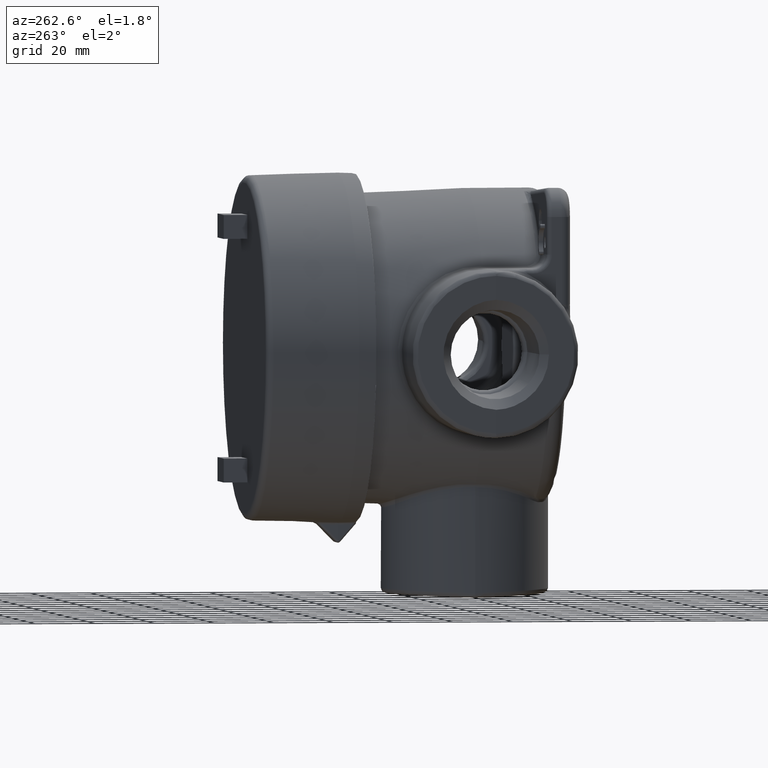
[diagram: clean part render]
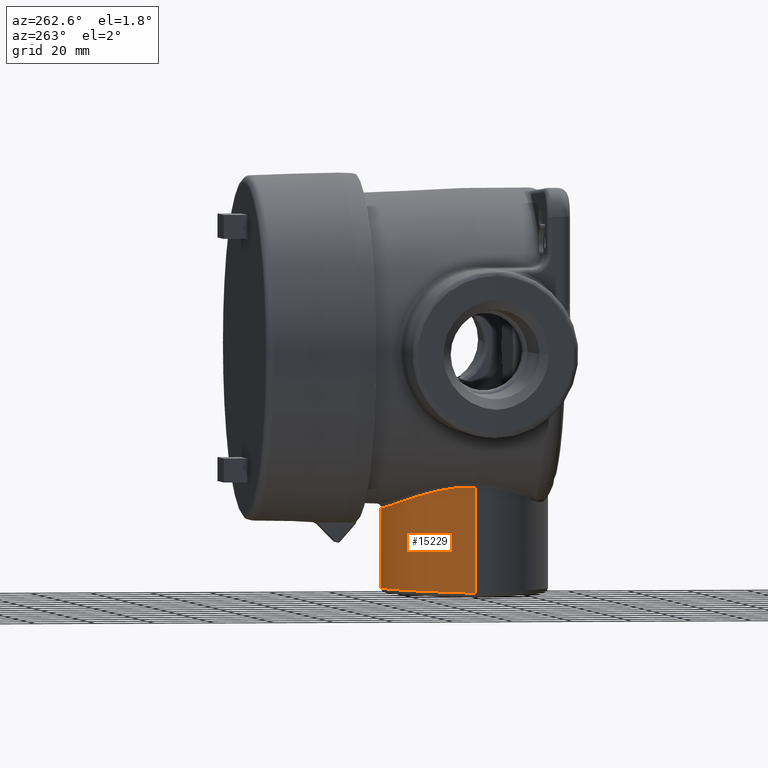
[diagram: same view with one face highlighted and labeled with its STEP entity id]
A machine part, auxiliary view. The second image highlights one B-rep face of the part: STEP entity #15229.
In plain terms, the highlighted cylindrical surface (partial cylindrical patch) has radius 27.7876 mm, axis along (-0, -0, 1).
Its self-contained STEP definition (entity closure, byte-faithful):
#93=ELLIPSE('',#16250,1.09459284491548,1.094);
#731=CYLINDRICAL_SURFACE('',#16252,1.094);
#1035=LINE('',#26021,#2310);
#1098=LINE('',#48103,#2373);
#1099=LINE('',#48106,#2374);
#2310=VECTOR('',#17285,0.393700787401575);
#2373=VECTOR('',#17766,0.393700787401575);
#2374=VECTOR('',#17769,0.393700787401575);
#4097=FACE_OUTER_BOUND('',#5016,.T.);
#5016=EDGE_LOOP('',(#13830,#13831,#13832,#13833,#13834,#13835));
#5307=B_SPLINE_CURVE_WITH_KNOTS('',3,(#48697,#48698,#48699,#48700,#48701,
#48702,#48703,#48704,#48705,#48706,#48707,#48708,#48709,#48710,#48711,#48712,
#48713,#48714,#48715,#48716,#48717),.UNSPECIFIED.,.F.,.F.,(4,1,1,1,1,1,
1,1,1,1,1,1,1,1,1,1,1,1,4),(0.,0.658856562309984,1.31771312461997,2.30599796808494,
2.63542624923993,3.51390166565325,3.9531393738599,4.1178535144374,4.39237708206656,
5.27085249847987,5.92970906078985,6.1767802716561,6.58856562309984,7.24742218540982,
7.9062787477198,8.56513531002979,8.81220652089603,9.05927773176228,9.22399187233977),
 .UNSPECIFIED.);
#5312=B_SPLINE_CURVE_WITH_KNOTS('',3,(#48849,#48850,#48851,#48852),
 .UNSPECIFIED.,.F.,.F.,(4,4),(3.0184535458957E-16,0.00443593985464041),
 .UNSPECIFIED.);
#6446=VERTEX_POINT('',#25870);
#6470=VERTEX_POINT('',#26020);
#6580=VERTEX_POINT('',#48094);
#6581=VERTEX_POINT('',#48102);
#6582=VERTEX_POINT('',#48104);
#6597=VERTEX_POINT('',#48695);
#8053=EDGE_CURVE('',#6470,#6446,#1035,.T.);
#8294=EDGE_CURVE('',#6581,#6580,#1098,.T.);
#8296=EDGE_CURVE('',#6446,#6582,#1099,.T.);
#8323=EDGE_CURVE('',#6597,#6580,#5307,.T.);
#8329=EDGE_CURVE('',#6470,#6597,#5312,.T.);
#9534=EDGE_CURVE('',#6581,#6582,#93,.T.);
#13830=ORIENTED_EDGE('',*,*,#8329,.F.);
#13831=ORIENTED_EDGE('',*,*,#8053,.T.);
#13832=ORIENTED_EDGE('',*,*,#8296,.T.);
#13833=ORIENTED_EDGE('',*,*,#9534,.F.);
#13834=ORIENTED_EDGE('',*,*,#8294,.T.);
#13835=ORIENTED_EDGE('',*,*,#8323,.F.);
#15229=ADVANCED_FACE('',(#4097),#731,.T.);
#16250=AXIS2_PLACEMENT_3D('',#54082,#19381,#19382);
#16252=AXIS2_PLACEMENT_3D('',#54162,#19385,#19386);
#17285=DIRECTION('',(6.12323399573677E-17,0.,-1.));
#17766=DIRECTION('',(-6.12323399573677E-17,0.,1.));
#17769=DIRECTION('',(6.12323399573677E-17,0.,-1.));
#19381=DIRECTION('center_axis',(0.,0.0329079199613435,-0.999458387729983));
#19382=DIRECTION('ref_axis',(-2.01502894236282E-18,0.999458387729983,0.0329079199613435));
#19385=DIRECTION('center_axis',(-6.12323399573677E-17,0.,1.));
#19386=DIRECTION('ref_axis',(-3.41507629838462E-8,0.999999999999999,-2.09113112883036E-24));
#25870=CARTESIAN_POINT('',(1.094,-2.4056,-2.15632612592428));
#26020=CARTESIAN_POINT('',(1.094,-2.4056,-1.80149192016675));
#26021=CARTESIAN_POINT('',(1.094,-2.4056,-3.25));
#48094=CARTESIAN_POINT('',(-1.09399999999999,-2.40560007458257,-1.80149192661928));
#48102=CARTESIAN_POINT('',(-1.094,-2.4056,-3.18746190348132));
#48103=CARTESIAN_POINT('',(-1.094,-2.4056,-3.25));
#48104=CARTESIAN_POINT('',(1.094,-2.4056,-3.18746190348132));
#48106=CARTESIAN_POINT('',(1.094,-2.4056,-3.25));
#48695=CARTESIAN_POINT('',(1.09399872733569,-2.40393129154753,-1.80142058066298));
#48697=CARTESIAN_POINT('Ctrl Pts',(1.09399872733569,-2.40393129154753,-1.80142058066298));
#48698=CARTESIAN_POINT('Ctrl Pts',(1.09387270827471,-2.32131368862169,-1.7979303926863));
#48699=CARTESIAN_POINT('Ctrl Pts',(1.07450898956107,-2.15379095476553,-1.80379221568563));
#48700=CARTESIAN_POINT('Ctrl Pts',(0.976705474651702,-1.88195122742264,
-1.85398552199433));
#48701=CARTESIAN_POINT('Ctrl Pts',(0.834698040504769,-1.68341781573243,
-1.92207728875468));
#48702=CARTESIAN_POINT('Ctrl Pts',(0.633845556023294,-1.50427209758769,
-1.99699386932748));
#48703=CARTESIAN_POINT('Ctrl Pts',(0.458027206915013,-1.401494894332,-2.04713555713828));
#48704=CARTESIAN_POINT('Ctrl Pts',(0.279638865320632,-1.34573982553478,
-2.0760145035571));
#48705=CARTESIAN_POINT('Ctrl Pts',(0.171533557713244,-1.32407613386722,
-2.08741859396444));
#48706=CARTESIAN_POINT('Ctrl Pts',(0.00694212191791122,-1.3036302103028,
-2.09839970761342));
#48707=CARTESIAN_POINT('Ctrl Pts',(-0.225105840429903,-1.32164623274455,
-2.08850636884171));
#48708=CARTESIAN_POINT('Ctrl Pts',(-0.435134564803811,-1.39695753859421,
-2.04944173581301));
#48709=CARTESIAN_POINT('Ctrl Pts',(-0.578671794890183,-1.47440096320212,
-2.01208969671186));
#48710=CARTESIAN_POINT('Ctrl Pts',(-0.710837490058614,-1.566265979636,-1.9701260996732));
#48711=CARTESIAN_POINT('Ctrl Pts',(-0.861356223407296,-1.71673491358059,
-1.90948335667446));
#48712=CARTESIAN_POINT('Ctrl Pts',(-0.991283535603088,-1.92181430309377,
-1.8464570626565));
#48713=CARTESIAN_POINT('Ctrl Pts',(-1.05777900447715,-2.10791116498173,
-1.81242960829455));
#48714=CARTESIAN_POINT('Ctrl Pts',(-1.0841243807975,-2.24977950443923,-1.80130265392957));
#48715=CARTESIAN_POINT('Ctrl Pts',(-1.09258503353973,-2.3330377690192,-1.79929454854898));
#48716=CARTESIAN_POINT('Ctrl Pts',(-1.09400000141542,-2.38487698225281,
-1.80059549227681));
#48717=CARTESIAN_POINT('Ctrl Pts',(-1.094,-2.40560007472187,-1.80149192339904));
#48849=CARTESIAN_POINT('Ctrl Pts',(1.094,-2.4056,-1.80149192016675));
#48850=CARTESIAN_POINT('Ctrl Pts',(1.094,-2.40504377474261,-1.80146785922557));
#48851=CARTESIAN_POINT('Ctrl Pts',(1.09399957579498,-2.4044875381397,-1.8014440793497));
#48852=CARTESIAN_POINT('Ctrl Pts',(1.09399872733569,-2.40393129154753,-1.80142058066298));
#54082=CARTESIAN_POINT('Origin',(1.95175750875127E-16,-2.4056,-3.18746190348132));
#54162=CARTESIAN_POINT('Origin',(1.99005104861445E-16,-2.4056,-3.25));